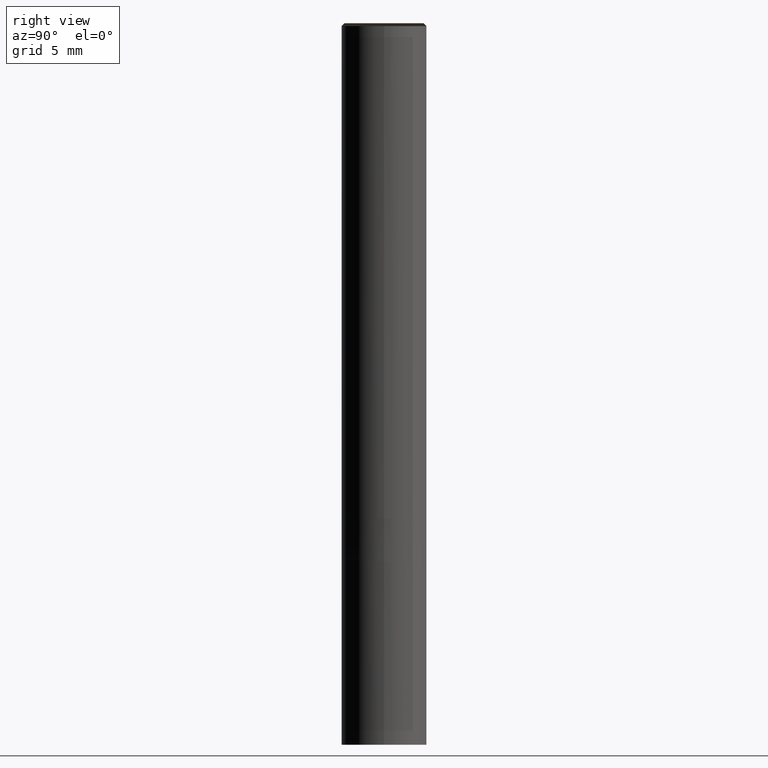
[diagram: clean part render]
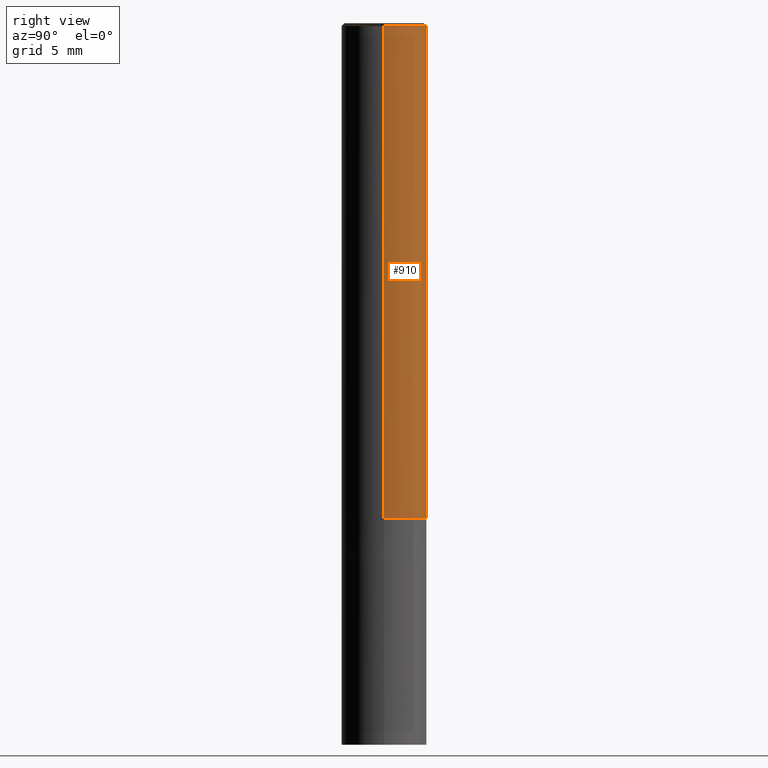
[diagram: same view with one face highlighted and labeled with its STEP entity id]
A machine part, right view. The second image highlights one B-rep face of the part: STEP entity #910.
In plain terms, the highlighted face is a freeform B-spline surface patch.
Its self-contained STEP definition (entity closure, byte-faithful):
#716=CARTESIAN_POINT('',(3.0,0.0,0.0));
#717=CARTESIAN_POINT('',(3.0,3.0,0.0));
#718=CARTESIAN_POINT('',(0.0,3.0,0.0));
#719=CARTESIAN_POINT('',(-3.0,3.0,0.0));
#720=CARTESIAN_POINT('',(-3.0,0.0,0.0));
#721=CARTESIAN_POINT('',(3.0,0.0,34.8));
#722=CARTESIAN_POINT('',(3.0,3.0,34.8));
#723=CARTESIAN_POINT('',(0.0,3.0,34.8));
#724=CARTESIAN_POINT('',(-3.0,3.0,34.8));
#725=CARTESIAN_POINT('',(-3.0,0.0,34.8));
#891=(
BOUNDED_SURFACE()
B_SPLINE_SURFACE(1,2,(
(#716,#717,#718,#719,#720),
(#721,#722,#723,#724,#725)
), .UNSPECIFIED.,.F.,.F.,.F.)
B_SPLINE_SURFACE_WITH_KNOTS((2,2),(3,2,3),(
0.0,1.0),(
0.0,0.5,1.0), .UNSPECIFIED.)
GEOMETRIC_REPRESENTATION_ITEM()
RATIONAL_B_SPLINE_SURFACE(((1.0,0.707106781187,1.0,0.707106781187,1.0),
(1.0,0.707106781187,1.0,0.707106781187,1.0)
))
REPRESENTATION_ITEM('')
SURFACE()
);
#892=(
BOUNDED_CURVE()
B_SPLINE_CURVE(2,(#720,#719,#718,#717,#716),.UNSPECIFIED.,.F.,.F.)
B_SPLINE_CURVE_WITH_KNOTS((3,2,3),
(0.0,0.5,1.0),.UNSPECIFIED.)
CURVE()
GEOMETRIC_REPRESENTATION_ITEM()
RATIONAL_B_SPLINE_CURVE((1.0,0.707106781187,1.0,0.707106781187,1.0))
REPRESENTATION_ITEM('')
);
#893=(
BOUNDED_CURVE()
B_SPLINE_CURVE(1,(#716,#721),.UNSPECIFIED.,.F.,.F.)
B_SPLINE_CURVE_WITH_KNOTS((2,2),
(0.0,1.0),.UNSPECIFIED.)
CURVE()
GEOMETRIC_REPRESENTATION_ITEM()
RATIONAL_B_SPLINE_CURVE((1.0,1.0))
REPRESENTATION_ITEM('')
);
#894=(
BOUNDED_CURVE()
B_SPLINE_CURVE(2,(#721,#722,#723,#724,#725),.UNSPECIFIED.,.F.,.F.)
B_SPLINE_CURVE_WITH_KNOTS((3,2,3),
(0.0,0.5,1.0),.UNSPECIFIED.)
CURVE()
GEOMETRIC_REPRESENTATION_ITEM()
RATIONAL_B_SPLINE_CURVE((1.0,0.707106781187,1.0,0.707106781187,1.0))
REPRESENTATION_ITEM('')
);
#895=(
BOUNDED_CURVE()
B_SPLINE_CURVE(1,(#725,#720),.UNSPECIFIED.,.F.,.F.)
B_SPLINE_CURVE_WITH_KNOTS((2,2),
(0.0,1.0),.UNSPECIFIED.)
CURVE()
GEOMETRIC_REPRESENTATION_ITEM()
RATIONAL_B_SPLINE_CURVE((1.0,1.0))
REPRESENTATION_ITEM('')
);
#896=VERTEX_POINT('',#716);
#897=VERTEX_POINT('',#720);
#898=VERTEX_POINT('',#721);
#899=VERTEX_POINT('',#725);
#900=EDGE_CURVE('',#897,#896,#892,.T.);
#901=EDGE_CURVE('',#896,#898,#893,.T.);
#902=EDGE_CURVE('',#898,#899,#894,.T.);
#903=EDGE_CURVE('',#899,#897,#895,.T.);
#904=ORIENTED_EDGE('',*,*,#900,.T.);
#905=ORIENTED_EDGE('',*,*,#901,.T.);
#906=ORIENTED_EDGE('',*,*,#902,.T.);
#907=ORIENTED_EDGE('',*,*,#903,.T.);
#908=EDGE_LOOP('',(#904,#905,#906,#907));
#909=FACE_OUTER_BOUND('',#908,.T.);
#910=ADVANCED_FACE('',(#909),#891,.T.);